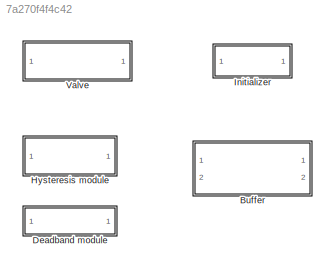
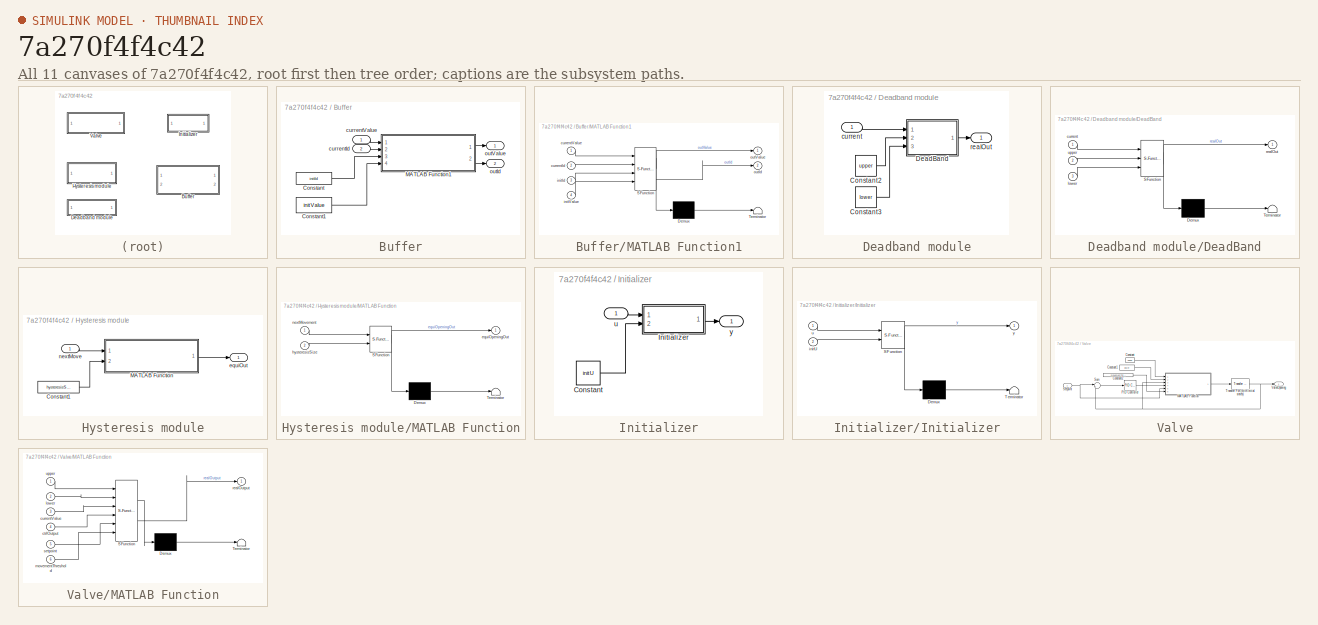
[diagram: thumbnail index - all 11 canvases of the model, root first then tree order]
MODEL slx_7a270f4f4c42
KIND library
CONFIG AbsTol = auto
CONFIG EnableMultiTasking = off
CONFIG FixedStep = auto
CONFIG MaxStep = auto
CONFIG MinStep = auto
CONFIG RelTol = 1e-3
CONFIG SampleTimeConstraint = Unconstrained
CONFIG SolverName = VariableStepAuto
CONFIG StartTime = 0.0
CONFIG StopTime = 10.0
BLOCK [SubSystem] Buffer
  Ports = [2, 2]
  RequestExecContextInheritance = off
BLOCK [Constant] Buffer/Constant
  Value = initId
BLOCK [Constant] Buffer/Constant1
  Value = initValue
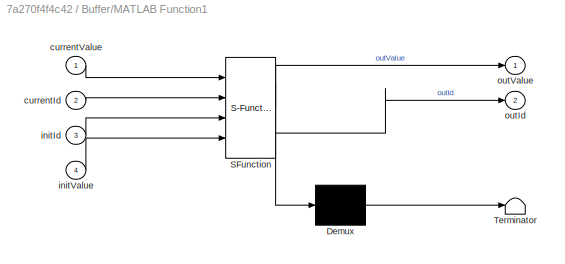
BLOCK [SubSystem] Buffer/MATLAB Function1
  ErrorFcn = Stateflow.Translate.translate
  PermitHierarchicalResolution = ExplicitOnly
  Ports = [4, 2]
  RequestExecContextInheritance = off
  SFBlockType = MATLAB Function
  TreatAsAtomicUnit = on
BLOCK [Demux] Buffer/MATLAB Function1/ Demux 
  Outputs = 1
  Ports = [1, 1]
BLOCK [S-Function] Buffer/MATLAB Function1/ SFunction 
  EnableBusSupport = on
  FunctionName = sf_sfun
  PortCounts = [4 3]
  Ports = [4, 3]
  SFcnIsStateOwnerBlock = off
  SFunctionDeploymentMode = off
  Tag = Stateflow S-Function 4
BLOCK [Terminator] Buffer/MATLAB Function1/ Terminator 
BLOCK [Inport] Buffer/MATLAB Function1/currentId
  Port = 2
BLOCK [Inport] Buffer/MATLAB Function1/currentValue
BLOCK [Inport] Buffer/MATLAB Function1/initId
  Port = 3
BLOCK [Inport] Buffer/MATLAB Function1/initValue
  Port = 4
BLOCK [Outport] Buffer/MATLAB Function1/outId
  Port = 2
BLOCK [Outport] Buffer/MATLAB Function1/outValue
BLOCK [Inport] Buffer/currentId
  Port = 2
BLOCK [Inport] Buffer/currentValue
BLOCK [Outport] Buffer/outId
  Port = 2
BLOCK [Outport] Buffer/outValue
BLOCK [SubSystem] Deadband module
  Ports = [1, 1]
  RequestExecContextInheritance = off
BLOCK [Constant] Deadband module/Constant2
  Value = upper
BLOCK [Constant] Deadband module/Constant3
  Value = lower
BLOCK [SubSystem] Deadband module/DeadBand
  ErrorFcn = Stateflow.Translate.translate
  PermitHierarchicalResolution = ExplicitOnly
  Ports = [3, 1]
  RequestExecContextInheritance = off
  SFBlockType = MATLAB Function
  TreatAsAtomicUnit = on
BLOCK [Demux] Deadband module/DeadBand/ Demux 
  Outputs = 1
  Ports = [1, 1]
BLOCK [S-Function] Deadband module/DeadBand/ SFunction 
  EnableBusSupport = on
  FunctionName = sf_sfun
  PortCounts = [3 2]
  Ports = [3, 2]
  SFcnIsStateOwnerBlock = off
  SFunctionDeploymentMode = off
  Tag = Stateflow S-Function 3
BLOCK [Terminator] Deadband module/DeadBand/ Terminator 
BLOCK [Inport] Deadband module/DeadBand/current
BLOCK [Inport] Deadband module/DeadBand/lower
  Port = 3
BLOCK [Outport] Deadband module/DeadBand/realOut
BLOCK [Inport] Deadband module/DeadBand/upper
  Port = 2
BLOCK [Inport] Deadband module/current
BLOCK [Outport] Deadband module/realOut
BLOCK [SubSystem] Hysteresis module
  Ports = [1, 1]
  RequestExecContextInheritance = off
BLOCK [Constant] Hysteresis module/Constant1
  Value = hysteresisSize
BLOCK [SubSystem] Hysteresis module/MATLAB Function
  ErrorFcn = Stateflow.Translate.translate
  PermitHierarchicalResolution = ExplicitOnly
  Ports = [2, 1]
  RequestExecContextInheritance = off
  SFBlockType = MATLAB Function
  TreatAsAtomicUnit = on
BLOCK [Demux] Hysteresis module/MATLAB Function/ Demux 
  Outputs = 1
  Ports = [1, 1]
BLOCK [S-Function] Hysteresis module/MATLAB Function/ SFunction 
  EnableBusSupport = on
  FunctionName = sf_sfun
  PortCounts = [2 2]
  Ports = [2, 2]
  SFcnIsStateOwnerBlock = off
  SFunctionDeploymentMode = off
  Tag = Stateflow S-Function 1
BLOCK [Terminator] Hysteresis module/MATLAB Function/ Terminator 
BLOCK [Outport] Hysteresis module/MATLAB Function/equiOpeningOut
BLOCK [Inport] Hysteresis module/MATLAB Function/hysteresisSize
  Port = 2
BLOCK [Inport] Hysteresis module/MATLAB Function/nextMovement
BLOCK [Outport] Hysteresis module/equiOut
BLOCK [Inport] Hysteresis module/nextMove
BLOCK [SubSystem] Initializer
  Ports = [1, 1]
  RequestExecContextInheritance = off
BLOCK [Constant] Initializer/Constant
  Value = initU
BLOCK [SubSystem] Initializer/Initializer
  ErrorFcn = Stateflow.Translate.translate
  PermitHierarchicalResolution = ExplicitOnly
  Ports = [2, 1]
  RequestExecContextInheritance = off
  SFBlockType = MATLAB Function
  TreatAsAtomicUnit = on
BLOCK [Demux] Initializer/Initializer/ Demux 
  Outputs = 1
  Ports = [1, 1]
BLOCK [S-Function] Initializer/Initializer/ SFunction 
  EnableBusSupport = on
  FunctionName = sf_sfun
  PortCounts = [2 2]
  Ports = [2, 2]
  SFcnIsStateOwnerBlock = off
  SFunctionDeploymentMode = off
  Tag = Stateflow S-Function 5
BLOCK [Terminator] Initializer/Initializer/ Terminator 
BLOCK [Inport] Initializer/Initializer/initU
  Port = 2
BLOCK [Inport] Initializer/Initializer/u
BLOCK [Outport] Initializer/Initializer/y
BLOCK [Inport] Initializer/u
BLOCK [Outport] Initializer/y
BLOCK [SubSystem] Valve
  Ports = [1, 1]
  RequestExecContextInheritance = off
BLOCK [Constant] Valve/Constant
  Value = upper
BLOCK [Constant] Valve/Constant1
  Value = lower
BLOCK [Constant] Valve/Constant2
  Value = movementThreshold
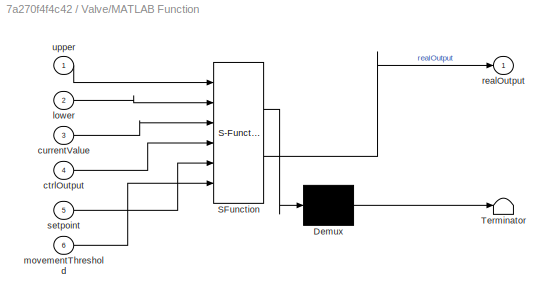
BLOCK [SubSystem] Valve/MATLAB Function
  ErrorFcn = Stateflow.Translate.translate
  PermitHierarchicalResolution = ExplicitOnly
  Ports = [6, 1]
  RequestExecContextInheritance = off
  SFBlockType = MATLAB Function
  TreatAsAtomicUnit = on
BLOCK [Demux] Valve/MATLAB Function/ Demux 
  Outputs = 1
  Ports = [1, 1]
BLOCK [S-Function] Valve/MATLAB Function/ SFunction 
  EnableBusSupport = on
  FunctionName = sf_sfun
  PortCounts = [6 2]
  Ports = [6, 2]
  SFcnIsStateOwnerBlock = off
  SFunctionDeploymentMode = off
  Tag = Stateflow S-Function 2
BLOCK [Terminator] Valve/MATLAB Function/ Terminator 
BLOCK [Inport] Valve/MATLAB Function/ctrlOutput
  Port = 4
BLOCK [Inport] Valve/MATLAB Function/currentValue
  Port = 3
BLOCK [Inport] Valve/MATLAB Function/lower
  Port = 2
BLOCK [Inport] Valve/MATLAB Function/movementThreshold
  Port = 6
BLOCK [Outport] Valve/MATLAB Function/realOutput
BLOCK [Inport] Valve/MATLAB Function/setpoint
  Port = 5
BLOCK [Inport] Valve/MATLAB Function/upper
BLOCK [Reference] Valve/PID Controller  REF=slpidlib/PID Controller
  Ports = [1, 1]
  SourceBlock = slpidlib/PID Controller
  SourceProductBaseCode = SL
  SourceType = PID 1dof
BLOCK [Inport] Valve/Setpoint
BLOCK [Sum] Valve/Sum
  Inputs = |+-
  Ports = [2, 1]
BLOCK [Reference] Valve/Transfer Fcn (with initial states)  REF=simulink_extras/Additional
Linear/Transfer Fcn
(with initial states)
  Ports = [1, 1]
  SourceBlock = simulink_extras/Additional\nLinear/Transfer Fcn\n(with initial states)
  SourceProductBaseCode = SL
  SourceType = Transfer Function with Initial States
BLOCK [Outport] Valve/ValveOpening
LINE Buffer/Constant1:1 -> Buffer/MATLAB Function1:4
LINE Buffer/Constant:1 -> Buffer/MATLAB Function1:3
LINE Buffer/MATLAB Function1:1 -> Buffer/outValue:1
LINE Buffer/MATLAB Function1:2 -> Buffer/outId:1
LINE Buffer/currentId:1 -> Buffer/MATLAB Function1:2
LINE Buffer/currentValue:1 -> Buffer/MATLAB Function1:1
LINE Deadband module/Constant2:1 -> Deadband module/DeadBand:2
LINE Deadband module/Constant3:1 -> Deadband module/DeadBand:3
LINE Deadband module/DeadBand:1 -> Deadband module/realOut:1
LINE Deadband module/current:1 -> Deadband module/DeadBand:1
LINE Hysteresis module/Constant1:1 -> Hysteresis module/MATLAB Function:2
LINE Hysteresis module/MATLAB Function:1 -> Hysteresis module/equiOut:1
LINE Hysteresis module/nextMove:1 -> Hysteresis module/MATLAB Function:1
LINE Initializer/Constant:1 -> Initializer/Initializer:2
LINE Initializer/Initializer:1 -> Initializer/y:1
LINE Initializer/u:1 -> Initializer/Initializer:1
LINE Valve/Constant1:1 -> Valve/MATLAB Function:2
LINE Valve/Constant2:1 -> Valve/MATLAB Function:6
LINE Valve/Constant:1 -> Valve/MATLAB Function:1
LINE Valve/MATLAB Function:1 -> Valve/Transfer Fcn (with initial states):1
LINE Valve/PID Controller:1 -> Valve/MATLAB Function:4
NET Valve/Setpoint:1 -> Valve/MATLAB Function:5, Valve/Sum:1
LINE Valve/Sum:1 -> Valve/PID Controller:1
NET Valve/Transfer Fcn (with initial states):1 -> Valve/MATLAB Function:3, Valve/Sum:2, Valve/ValveOpening:1
note: NET lines group one-source signal fan-out (src -> all destinations, sorted); 1:1 wires keep LINE
CHART Hysteresis module/MATLAB Function states=1 transitions=1
  STATE_LABEL 'eML_blk_kernel()'
  STATE_LABEL 'SCRIPT:\nfunction equiOpeningOut  = fcn(nextMovement,hysteresisSize)\n%[equiOpeningOut,previousDirectionOut]\npersistent previousDirection; %阀门移动是否同向,默认true为上升\npersistent hysteresisBuffer;\npersistent equiOpening; %阀门等效开度，带缓存\npersistent currentValve; %缓存上一步的阀门开度，实际的阀门开度\n\n% 静态变量初始化\nif(isempty(currentValve))\n    currentValve=nextMovement;\nend\n\nif(isempty(equiOpening))\n    equiOpening=nextMovement;\nend\n\n...<+1330ch>'
CHART Valve/MATLAB Function states=1 transitions=1
  STATE_LABEL 'eML_blk_kernel()'
  STATE_LABEL 'SCRIPT:\nfunction realOutput = fcn(upper,lower,currentValue,ctrlOutput,setpoint,movementThreshold)\n\nif(currentValue>setpoint)\n    if(currentValue<lower)\n        realOutput=0;\n     elseif(abs(currentValue-setpoint)<movementThreshold)\n        realOutput=0;\n    else\n        realOutput=ctrlOutput;\n    end\nelse\n    if(currentValue>upper)\n        realOutput=0;\n    \n    else\n        realOutput=ctrlOutput;...<+230ch>'
CHART Deadband module/DeadBand states=1 transitions=1
  STATE_LABEL 'eML_blk_kernel()'
  STATE_LABEL 'SCRIPT:\nfunction realOut = deadBandLimit(current,upper,lower)\nif(current<=lower)\n    realOut = 0;\nelseif(current>upper)\n    realOut=upper;\nelse\n    realOut=current;\nend\n'
CHART Buffer/MATLAB Function1 states=1 transitions=1
  STATE_LABEL 'eML_blk_kernel()'
  STATE_LABEL 'SCRIPT:\nfunction [outValue,outId] = Buffer(currentValue,currentId,initId,initValue)\n\n% 建立一个缓存器，根据Id来保存数据，并仅输出更新的数据\n\npersistent bufId;\npersistent bufValue;\n\nif(isempty(bufId))\n    bufId=initId;\nend\n\nif(isempty(bufValue))\n    bufValue=initValue;\nend\n\nif(currentId>=bufId)\n% 如果是更新的数据，更新buffer\n    bufValue=currentValue;\n    bufId=currentId;\nend\n\n% 直接从buffer输出\noutValue=bufValue;\noutId=bufId;'
CHART Initializer/Initializer states=1 transitions=1
  STATE_LABEL 'eML_blk_kernel()'
  STATE_LABEL 'SCRIPT:\nfunction y = initialHolder(u,initU)\npersistent u0;\nif(isempty(u0))\n    u0=initU;\nend\n\nif(u==0)\n    y=u0;\nelse\n    y = u;\n    u0=u;\nend\n'
CHART  states=0 transitions=0
CHART  states=0 transitions=0
CHART  states=0 transitions=0
CHART  states=0 transitions=0
CHART  states=0 transitions=0
